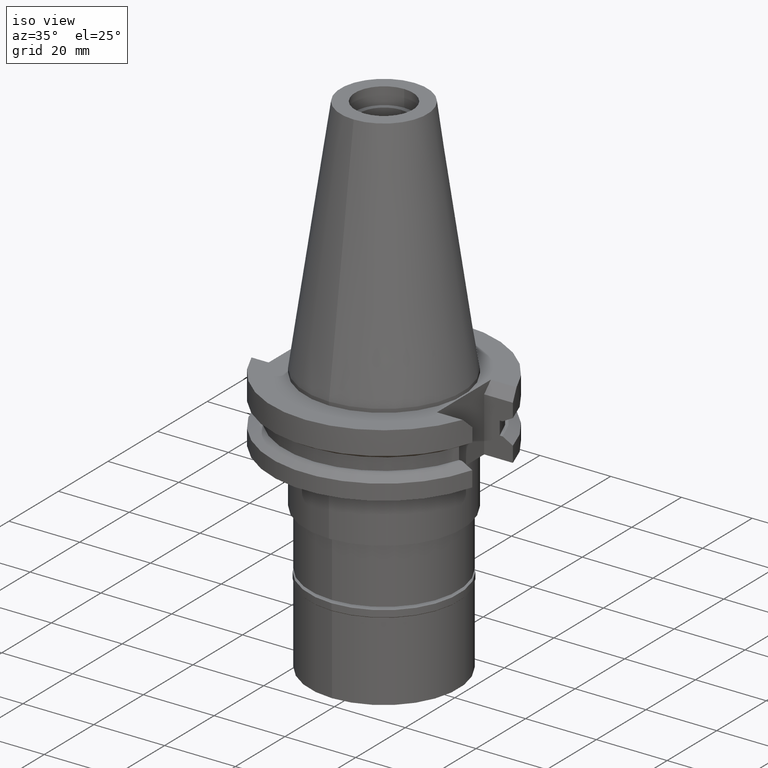
[diagram: clean part render]
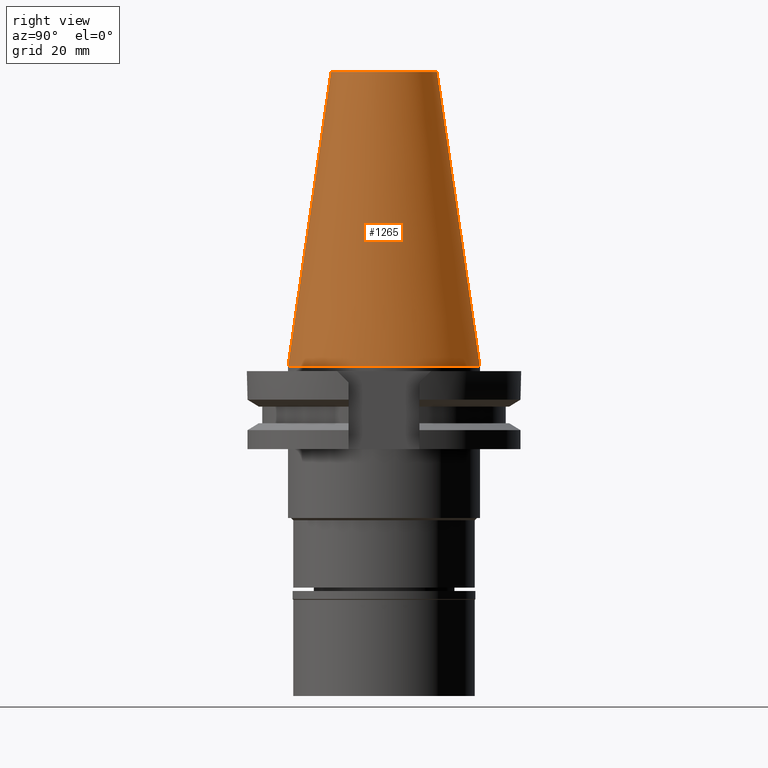
[diagram: tour spotlight — one face highlighted and labeled with its STEP entity id]
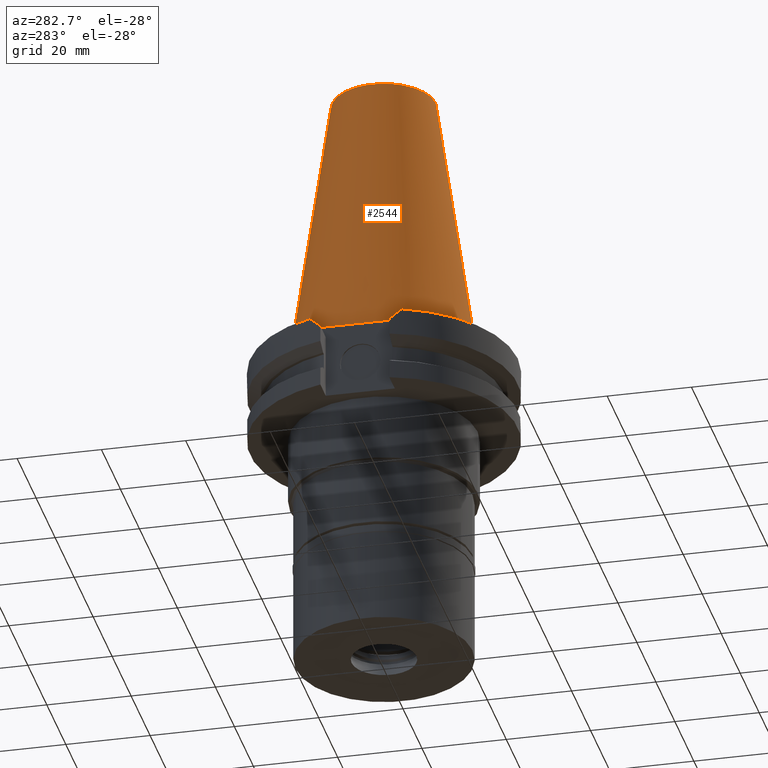
[diagram: tour spotlight — one face highlighted and labeled with its STEP entity id]
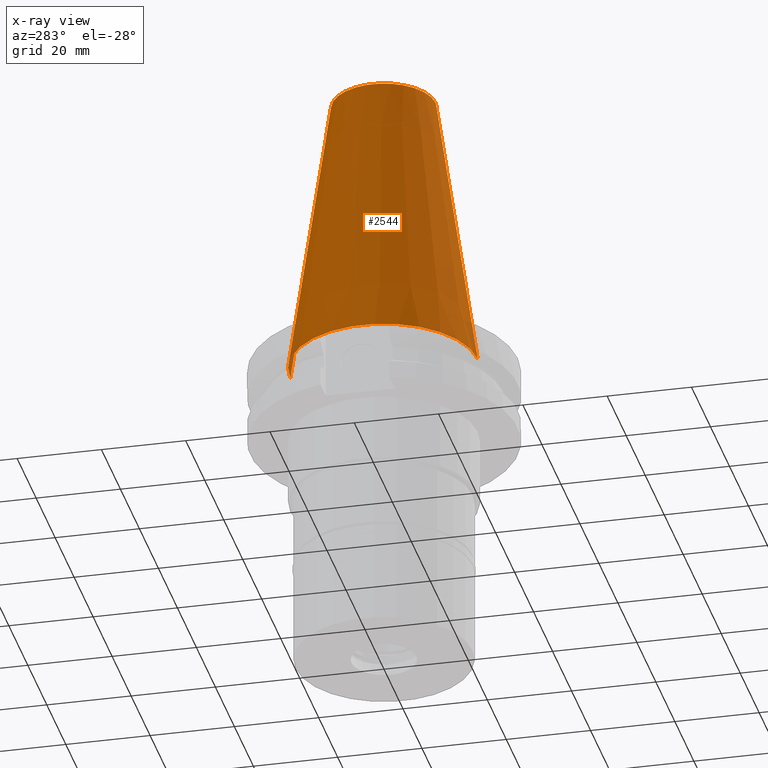
[diagram: x-ray of the same camera — body ghosted, this tour face saturated]
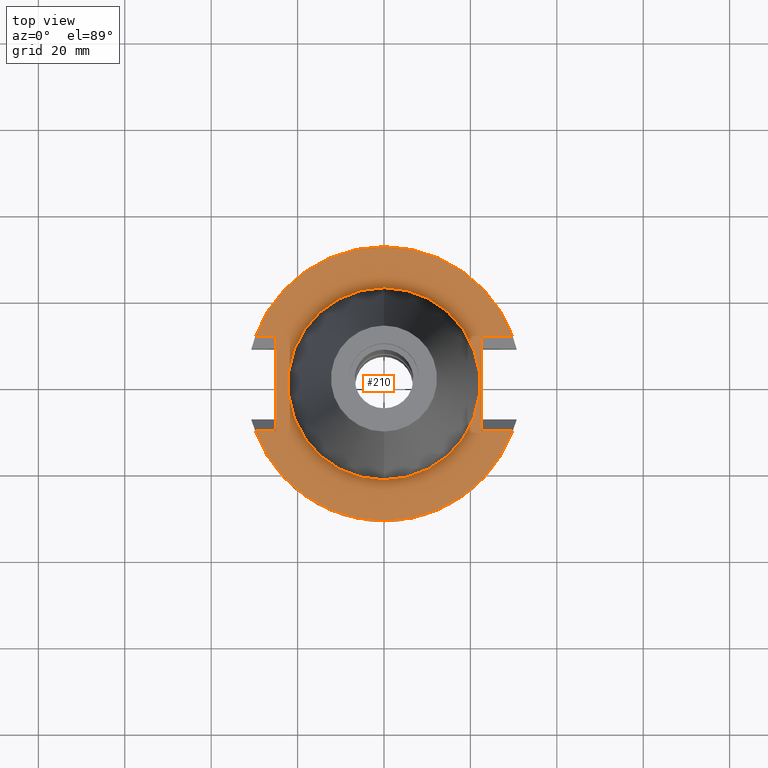
[diagram: tour spotlight — one face highlighted and labeled with its STEP entity id]
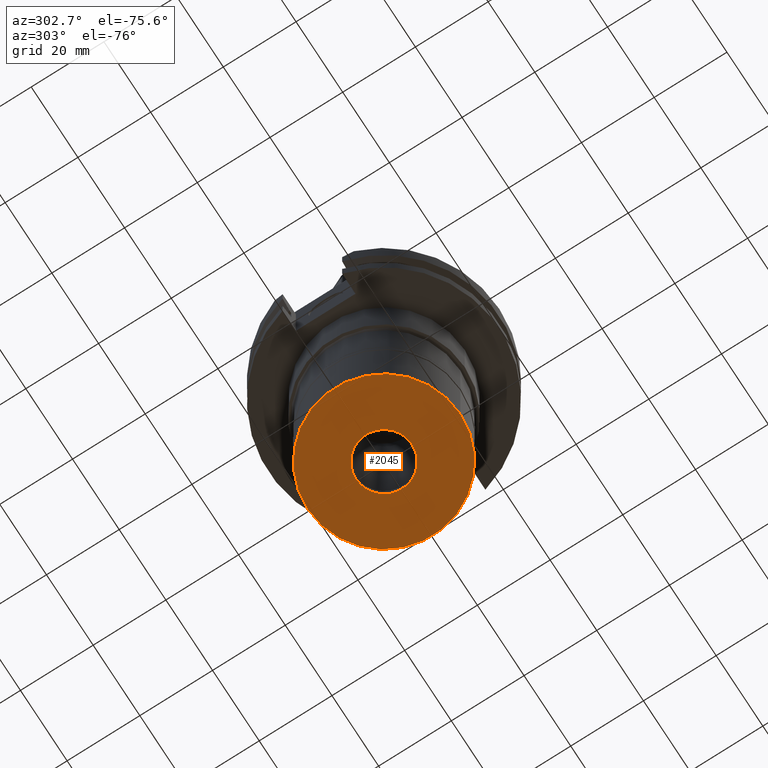
[diagram: tour spotlight — one face highlighted and labeled with its STEP entity id]
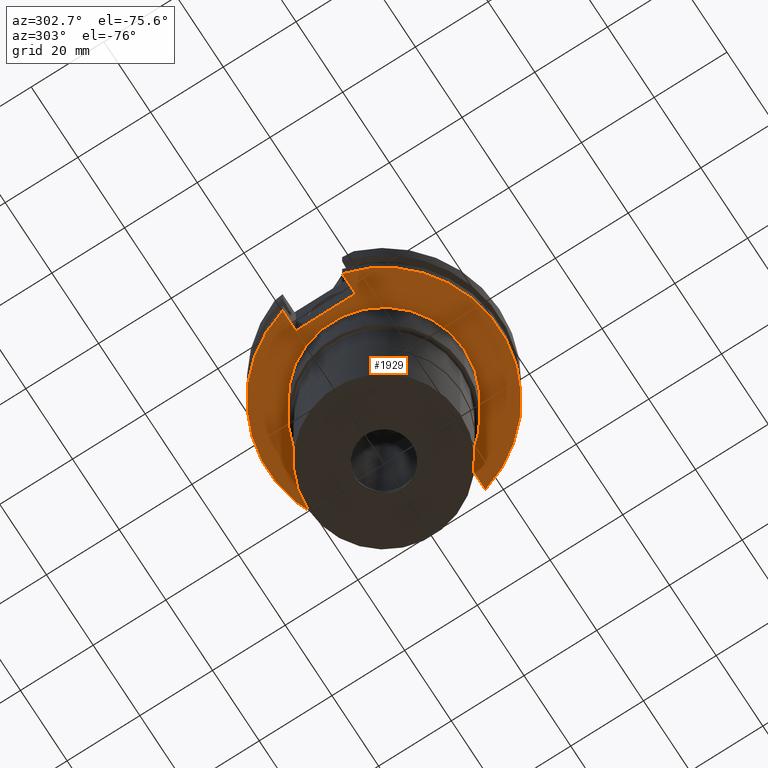
[diagram: tour spotlight — one face highlighted and labeled with its STEP entity id]
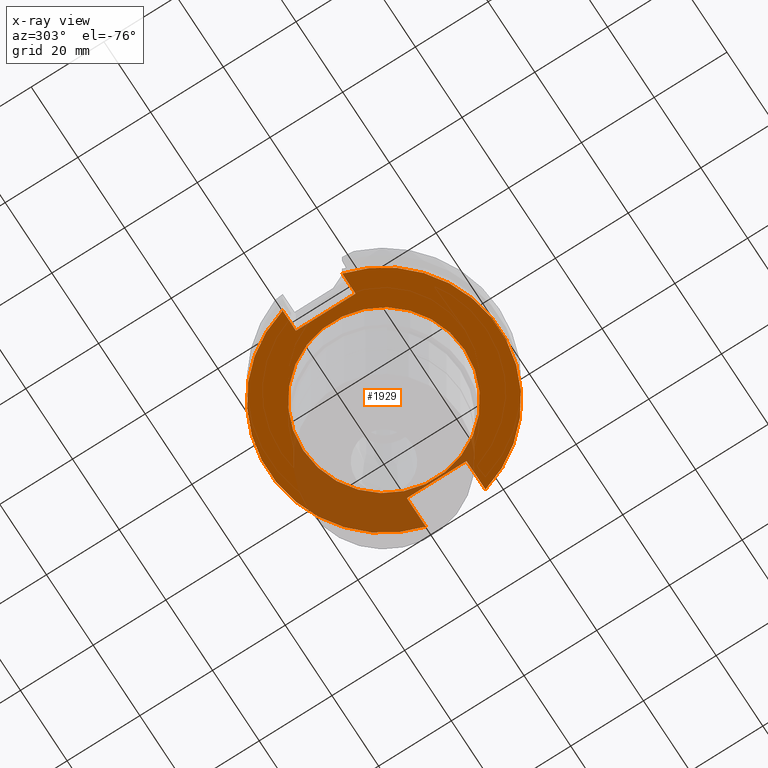
[diagram: x-ray of the same camera — body ghosted, this tour face saturated]
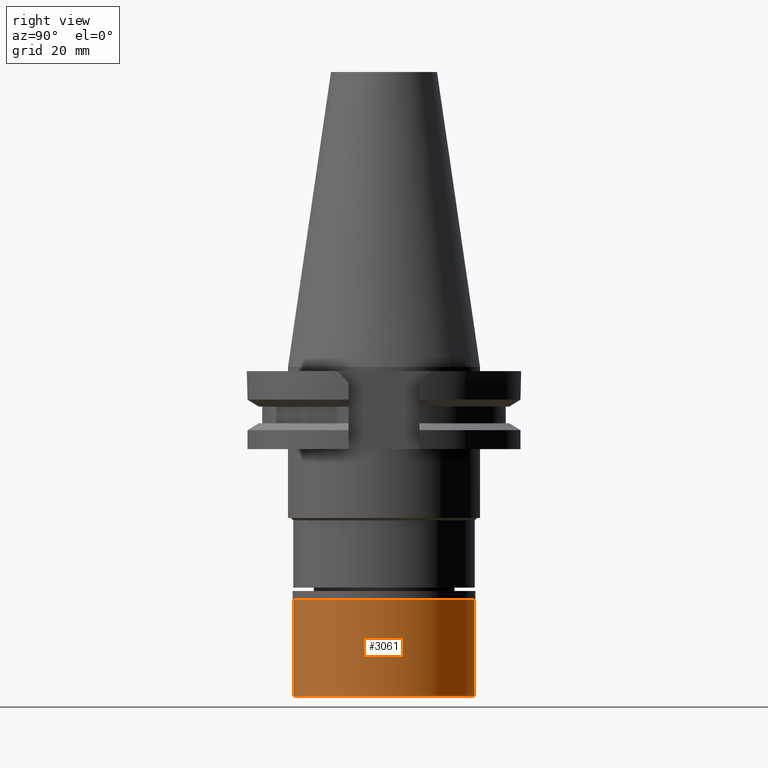
[diagram: tour spotlight — one face highlighted and labeled with its STEP entity id]
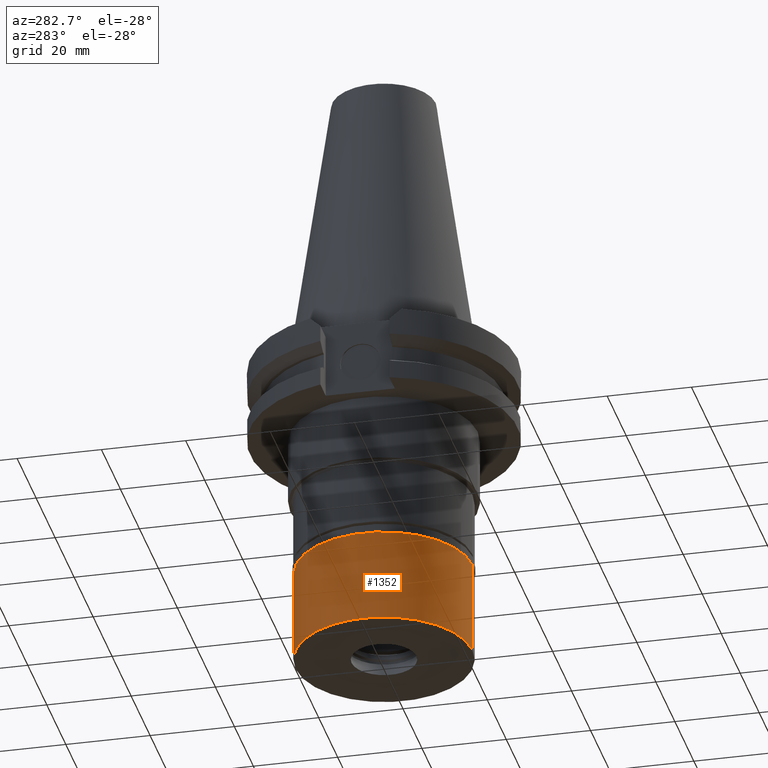
[diagram: tour spotlight — one face highlighted and labeled with its STEP entity id]
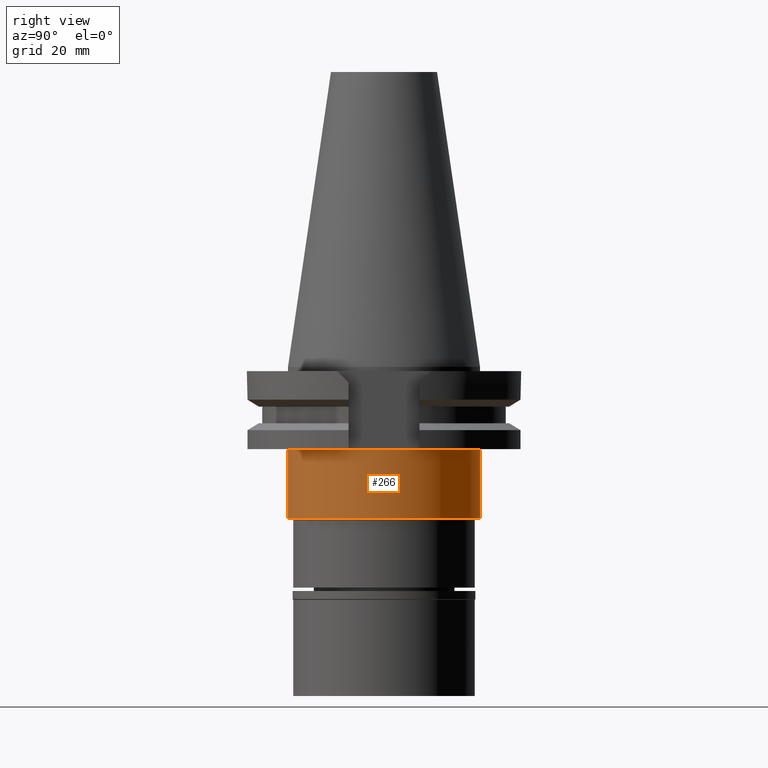
[diagram: tour spotlight — one face highlighted and labeled with its STEP entity id]
A machine part: a face-by-face anatomy tour. The part has 90 B-rep faces; the first image is the clean iso view, then the 8 largest visible faces are spotlighted one at a time (largest first), each with its STEP entity span.

Face 1 — right view, entity #1265. In plain terms, the highlighted conical surface has half-angle 8.297 deg.
Definition (entity closure, byte-faithful):
#7 = AXIS2_PLACEMENT_3D ( 'NONE', #766, #2810, #2798 ) ;
#35 = ORIENTED_EDGE ( 'NONE', *, *, #2272, .T. ) ;
#77 = DIRECTION ( 'NONE',  ( 0.0000000000000000000, 1.000000000000000000, 0.0000000000000000000 ) ) ;
#167 = CARTESIAN_POINT ( 'NONE',  ( 0.0000000000000000000, -12.27186888070000137, 68.25000000000000000 ) ) ;
#201 = LINE ( 'NONE', #388, #2561 ) ;
#388 = CARTESIAN_POINT ( 'NONE',  ( 0.0000000000000000000, 12.27186888070000137, 68.25000000000000000 ) ) ;
#476 = DIRECTION ( 'NONE',  ( 0.0000000000000000000, 0.0000000000000000000, -1.000000000000000000 ) ) ;
#528 = DIRECTION ( 'NONE',  ( 0.0000000000000000000, 1.000000000000000000, 0.0000000000000000000 ) ) ;
#529 = AXIS2_PLACEMENT_3D ( 'NONE', #1730, #476, #77 ) ;
#551 = CIRCLE ( 'NONE', #2945, 22.22500000000000142 ) ;
#636 = LINE ( 'NONE', #167, #1277 ) ;
#728 = EDGE_CURVE ( 'NONE', #1497, #2953, #2339, .T. ) ;
#766 = CARTESIAN_POINT ( 'NONE',  ( 0.0000000000000000000, 0.0000000000000000000, 34.12500000000000000 ) ) ;
#968 = CARTESIAN_POINT ( 'NONE',  ( 0.0000000000000000000, 22.22500000000000142, -1.278976924367999843E-13 ) ) ;
#1009 = CONICAL_SURFACE ( 'NONE', #7, 17.24843444035000317, 0.1448125860318199565 ) ;
#1096 = EDGE_CURVE ( 'NONE', #1497, #3028, #201, .T. ) ;
#1265 = ADVANCED_FACE ( 'NONE', ( #1709 ), #1009, .T. ) ;
#1277 = VECTOR ( 'NONE', #2129, 1000.000000000000114 ) ;
#1425 = ORIENTED_EDGE ( 'NONE', *, *, #728, .T. ) ;
#1497 = VERTEX_POINT ( 'NONE', #2899 ) ;
#1709 = FACE_OUTER_BOUND ( 'NONE', #3013, .T. ) ;
#1730 = CARTESIAN_POINT ( 'NONE',  ( 0.0000000000000000000, 0.0000000000000000000, 68.25000000000000000 ) ) ;
#1780 = DIRECTION ( 'NONE',  ( 0.0000000000000000000, 0.0000000000000000000, -1.000000000000000000 ) ) ;
#1935 = VERTEX_POINT ( 'NONE', #2653 ) ;
#2032 = CARTESIAN_POINT ( 'NONE',  ( 0.0000000000000000000, 0.0000000000000000000, -2.842170943040000381E-13 ) ) ;
#2129 = DIRECTION ( 'NONE',  ( 0.0000000000000000000, -0.1443069799456937474, -0.9895329683941577192 ) ) ;
#2272 = EDGE_CURVE ( 'NONE', #2953, #1935, #636, .T. ) ;
#2339 = CIRCLE ( 'NONE', #529, 12.27186888070000137 ) ;
#2493 = EDGE_CURVE ( 'NONE', #3028, #1935, #551, .T. ) ;
#2561 = VECTOR ( 'NONE', #2988, 1000.000000000000114 ) ;
#2653 = CARTESIAN_POINT ( 'NONE',  ( 0.0000000000000000000, -22.22500000000000142, -1.278976924367999843E-13 ) ) ;
#2790 = CARTESIAN_POINT ( 'NONE',  ( 0.0000000000000000000, -12.27186888070000137, 68.25000000000000000 ) ) ;
#2794 = ORIENTED_EDGE ( 'NONE', *, *, #2493, .F. ) ;
#2798 = DIRECTION ( 'NONE',  ( 0.0000000000000000000, -1.000000000000000000, 0.0000000000000000000 ) ) ;
#2810 = DIRECTION ( 'NONE',  ( 0.0000000000000000000, 0.0000000000000000000, -1.000000000000000000 ) ) ;
#2899 = CARTESIAN_POINT ( 'NONE',  ( 0.0000000000000000000, 12.27186888070000137, 68.25000000000000000 ) ) ;
#2945 = AXIS2_PLACEMENT_3D ( 'NONE', #2032, #1780, #528 ) ;
#2953 = VERTEX_POINT ( 'NONE', #2790 ) ;
#2988 = DIRECTION ( 'NONE',  ( 0.0000000000000000000, 0.1443069799456937474, -0.9895329683941577192 ) ) ;
#3013 = EDGE_LOOP ( 'NONE', ( #1425, #35, #2794, #3072 ) ) ;
#3028 = VERTEX_POINT ( 'NONE', #968 ) ;
#3072 = ORIENTED_EDGE ( 'NONE', *, *, #1096, .F. ) ;

Face 2 — auxiliary view, entity #2544. An x-ray twin of the same camera follows (body ghosted, this face saturated) — the face is partly hidden behind the body. In plain terms, the highlighted conical surface has half-angle 8.297 deg.
Definition (entity closure, byte-faithful):
#96 = DIRECTION ( 'NONE',  ( 0.0000000000000000000, -1.000000000000000000, 0.0000000000000000000 ) ) ;
#167 = CARTESIAN_POINT ( 'NONE',  ( 0.0000000000000000000, -12.27186888070000137, 68.25000000000000000 ) ) ;
#201 = LINE ( 'NONE', #388, #2561 ) ;
#206 = DIRECTION ( 'NONE',  ( 0.0000000000000000000, 0.0000000000000000000, -1.000000000000000000 ) ) ;
#283 = EDGE_CURVE ( 'NONE', #1935, #3028, #2548, .T. ) ;
#306 = DIRECTION ( 'NONE',  ( 0.0000000000000000000, 0.0000000000000000000, -1.000000000000000000 ) ) ;
#388 = CARTESIAN_POINT ( 'NONE',  ( 0.0000000000000000000, 12.27186888070000137, 68.25000000000000000 ) ) ;
#430 = ORIENTED_EDGE ( 'NONE', *, *, #1096, .T. ) ;
#442 = CARTESIAN_POINT ( 'NONE',  ( 0.0000000000000000000, 0.0000000000000000000, 68.25000000000000000 ) ) ;
#550 = DIRECTION ( 'NONE',  ( 0.0000000000000000000, 0.0000000000000000000, -1.000000000000000000 ) ) ;
#636 = LINE ( 'NONE', #167, #1277 ) ;
#695 = CIRCLE ( 'NONE', #3196, 12.27186888070000137 ) ;
#738 = AXIS2_PLACEMENT_3D ( 'NONE', #783, #306, #1089 ) ;
#742 = DIRECTION ( 'NONE',  ( 0.0000000000000000000, -1.000000000000000000, 0.0000000000000000000 ) ) ;
#760 = CARTESIAN_POINT ( 'NONE',  ( 0.0000000000000000000, 0.0000000000000000000, 34.12500000000000000 ) ) ;
#783 = CARTESIAN_POINT ( 'NONE',  ( 0.0000000000000000000, 0.0000000000000000000, -2.842170943040000381E-13 ) ) ;
#968 = CARTESIAN_POINT ( 'NONE',  ( 0.0000000000000000000, 22.22500000000000142, -1.278976924367999843E-13 ) ) ;
#1089 = DIRECTION ( 'NONE',  ( 0.0000000000000000000, -1.000000000000000000, 0.0000000000000000000 ) ) ;
#1096 = EDGE_CURVE ( 'NONE', #1497, #3028, #201, .T. ) ;
#1125 = EDGE_LOOP ( 'NONE', ( #3274, #3239, #1167, #430 ) ) ;
#1167 = ORIENTED_EDGE ( 'NONE', *, *, #2029, .T. ) ;
#1223 = CONICAL_SURFACE ( 'NONE', #3155, 17.24843444035000317, 0.1448125860318199565 ) ;
#1277 = VECTOR ( 'NONE', #2129, 1000.000000000000114 ) ;
#1497 = VERTEX_POINT ( 'NONE', #2899 ) ;
#1935 = VERTEX_POINT ( 'NONE', #2653 ) ;
#2029 = EDGE_CURVE ( 'NONE', #2953, #1497, #695, .T. ) ;
#2129 = DIRECTION ( 'NONE',  ( 0.0000000000000000000, -0.1443069799456937474, -0.9895329683941577192 ) ) ;
#2272 = EDGE_CURVE ( 'NONE', #2953, #1935, #636, .T. ) ;
#2544 = ADVANCED_FACE ( 'NONE', ( #3076 ), #1223, .T. ) ;
#2548 = CIRCLE ( 'NONE', #738, 22.22500000000000142 ) ;
#2561 = VECTOR ( 'NONE', #2988, 1000.000000000000114 ) ;
#2653 = CARTESIAN_POINT ( 'NONE',  ( 0.0000000000000000000, -22.22500000000000142, -1.278976924367999843E-13 ) ) ;
#2790 = CARTESIAN_POINT ( 'NONE',  ( 0.0000000000000000000, -12.27186888070000137, 68.25000000000000000 ) ) ;
#2899 = CARTESIAN_POINT ( 'NONE',  ( 0.0000000000000000000, 12.27186888070000137, 68.25000000000000000 ) ) ;
#2953 = VERTEX_POINT ( 'NONE', #2790 ) ;
#2988 = DIRECTION ( 'NONE',  ( 0.0000000000000000000, 0.1443069799456937474, -0.9895329683941577192 ) ) ;
#3028 = VERTEX_POINT ( 'NONE', #968 ) ;
#3076 = FACE_OUTER_BOUND ( 'NONE', #1125, .T. ) ;
#3155 = AXIS2_PLACEMENT_3D ( 'NONE', #760, #550, #742 ) ;
#3196 = AXIS2_PLACEMENT_3D ( 'NONE', #442, #206, #96 ) ;
#3239 = ORIENTED_EDGE ( 'NONE', *, *, #2272, .F. ) ;
#3274 = ORIENTED_EDGE ( 'NONE', *, *, #283, .F. ) ;

Face 3 — top view, entity #210. In plain terms, the highlighted planar face has unit normal (0, 0, -1).
Definition (entity closure, byte-faithful):
#59 = CARTESIAN_POINT ( 'NONE',  ( -24.98000000000000043, 10.89000000000000057, -1.000000000000000000 ) ) ;
#100 = VECTOR ( 'NONE', #569, 1000.000000000000000 ) ;
#114 = CARTESIAN_POINT ( 'NONE',  ( 0.0000000000000000000, 22.22500000000000142, -0.9999999999999000799 ) ) ;
#118 = ORIENTED_EDGE ( 'NONE', *, *, #2936, .T. ) ;
#210 = ADVANCED_FACE ( 'NONE', ( #2149, #1126 ), #372, .F. ) ;
#273 = LINE ( 'NONE', #1022, #2391 ) ;
#298 = CARTESIAN_POINT ( 'NONE',  ( -24.98000000000000043, -10.89000000000000057, -1.000000000000000000 ) ) ;
#334 = EDGE_CURVE ( 'NONE', #1374, #2935, #1839, .T. ) ;
#372 = PLANE ( 'NONE',  #2751 ) ;
#390 = EDGE_CURVE ( 'NONE', #2603, #2955, #273, .T. ) ;
#450 = ORIENTED_EDGE ( 'NONE', *, *, #2174, .F. ) ;
#491 = ORIENTED_EDGE ( 'NONE', *, *, #2492, .F. ) ;
#496 = ORIENTED_EDGE ( 'NONE', *, *, #2704, .T. ) ;
#549 = LINE ( 'NONE', #1260, #1872 ) ;
#569 = DIRECTION ( 'NONE',  ( 0.0000000000000000000, -1.000000000000000000, 0.0000000000000000000 ) ) ;
#586 = CARTESIAN_POINT ( 'NONE',  ( 22.57000000000000028, 10.89000000000000057, -1.000000000000000000 ) ) ;
#598 = DIRECTION ( 'NONE',  ( 0.0000000000000000000, 0.0000000000000000000, 1.000000000000000000 ) ) ;
#604 = VECTOR ( 'NONE', #2840, 1000.000000000000000 ) ;
#614 = CARTESIAN_POINT ( 'NONE',  ( 0.0000000000000000000, 0.0000000000000000000, -0.9999999999999000799 ) ) ;
#653 = VECTOR ( 'NONE', #2640, 1000.000000000000000 ) ;
#670 = VERTEX_POINT ( 'NONE', #2773 ) ;
#676 = EDGE_CURVE ( 'NONE', #2935, #1361, #777, .T. ) ;
#699 = AXIS2_PLACEMENT_3D ( 'NONE', #2074, #3113, #1036 ) ;
#747 = CARTESIAN_POINT ( 'NONE',  ( 22.57000000000000028, 10.89000000000000057, -1.000000000000000000 ) ) ;
#774 = DIRECTION ( 'NONE',  ( 0.0000000000000000000, -1.000000000000000000, 0.0000000000000000000 ) ) ;
#777 = LINE ( 'NONE', #2527, #896 ) ;
#793 = DIRECTION ( 'NONE',  ( 0.0000000000000000000, -1.000000000000000000, 0.0000000000000000000 ) ) ;
#896 = VECTOR ( 'NONE', #2805, 1000.000000000000000 ) ;
#986 = ORIENTED_EDGE ( 'NONE', *, *, #1982, .T. ) ;
#1004 = DIRECTION ( 'NONE',  ( 0.0000000000000000000, 0.0000000000000000000, 1.000000000000000000 ) ) ;
#1018 = CARTESIAN_POINT ( 'NONE',  ( 0.0000000000000000000, 0.0000000000000000000, -0.9999999999999000799 ) ) ;
#1022 = CARTESIAN_POINT ( 'NONE',  ( -24.98000000000000043, 10.89000000000000057, -1.000000000000000000 ) ) ;
#1036 = DIRECTION ( 'NONE',  ( 0.0000000000000000000, 1.000000000000000000, 0.0000000000000000000 ) ) ;
#1037 = VERTEX_POINT ( 'NONE', #1631 ) ;
#1097 = LINE ( 'NONE', #2609, #604 ) ;
#1126 = FACE_BOUND ( 'NONE', #1245, .T. ) ;
#1245 = EDGE_LOOP ( 'NONE', ( #1623, #491 ) ) ;
#1260 = CARTESIAN_POINT ( 'NONE',  ( -24.98000000000000043, 10.89000000000000057, -1.000000000000000000 ) ) ;
#1280 = CIRCLE ( 'NONE', #1814, 22.22500000000000142 ) ;
#1328 = AXIS2_PLACEMENT_3D ( 'NONE', #2673, #1640, #2721 ) ;
#1361 = VERTEX_POINT ( 'NONE', #2021 ) ;
#1374 = VERTEX_POINT ( 'NONE', #747 ) ;
#1375 = CARTESIAN_POINT ( 'NONE',  ( 0.0000000000000000000, 0.0000000000000000000, -1.000000000000000000 ) ) ;
#1389 = AXIS2_PLACEMENT_3D ( 'NONE', #614, #598, #2859 ) ;
#1400 = EDGE_LOOP ( 'NONE', ( #986, #450, #2758, #118, #496, #2949, #1911, #2475 ) ) ;
#1623 = ORIENTED_EDGE ( 'NONE', *, *, #2679, .F. ) ;
#1631 = CARTESIAN_POINT ( 'NONE',  ( -29.82399034335000110, -10.89000000000000057, -1.000000000001000089 ) ) ;
#1640 = DIRECTION ( 'NONE',  ( 0.0000000000000000000, 0.0000000000000000000, -1.000000000000000000 ) ) ;
#1695 = LINE ( 'NONE', #2712, #653 ) ;
#1781 = EDGE_CURVE ( 'NONE', #1361, #1037, #2937, .T. ) ;
#1806 = DIRECTION ( 'NONE',  ( 0.0000000000000000000, -1.000000000000000000, 0.0000000000000000000 ) ) ;
#1814 = AXIS2_PLACEMENT_3D ( 'NONE', #1018, #1004, #793 ) ;
#1839 = LINE ( 'NONE', #586, #100 ) ;
#1867 = CIRCLE ( 'NONE', #699, 31.75000000000000000 ) ;
#1872 = VECTOR ( 'NONE', #774, 1000.000000000000000 ) ;
#1879 = VERTEX_POINT ( 'NONE', #114 ) ;
#1911 = ORIENTED_EDGE ( 'NONE', *, *, #676, .F. ) ;
#1982 = EDGE_CURVE ( 'NONE', #1374, #2079, #1695, .T. ) ;
#2021 = CARTESIAN_POINT ( 'NONE',  ( 29.82399034335000110, -10.89000000000000057, -1.000000000001000089 ) ) ;
#2050 = DIRECTION ( 'NONE',  ( -1.000000000000000000, -7.921012432186000838E-14, 0.0000000000000000000 ) ) ;
#2074 = CARTESIAN_POINT ( 'NONE',  ( 0.0000000000000000000, 0.0000000000000000000, -0.9999999999999000799 ) ) ;
#2079 = VERTEX_POINT ( 'NONE', #2092 ) ;
#2092 = CARTESIAN_POINT ( 'NONE',  ( 29.82399034335000110, 10.89000000000000057, -1.000000000001000089 ) ) ;
#2149 = FACE_OUTER_BOUND ( 'NONE', #1400, .T. ) ;
#2174 = EDGE_CURVE ( 'NONE', #2955, #2079, #1867, .T. ) ;
#2311 = CARTESIAN_POINT ( 'NONE',  ( 22.57000000000000028, -10.89000000000000057, -1.000000000000000000 ) ) ;
#2391 = VECTOR ( 'NONE', #2050, 1000.000000000000000 ) ;
#2405 = DIRECTION ( 'NONE',  ( 0.0000000000000000000, 0.0000000000000000000, -1.000000000000000000 ) ) ;
#2475 = ORIENTED_EDGE ( 'NONE', *, *, #334, .F. ) ;
#2492 = EDGE_CURVE ( 'NONE', #670, #1879, #1280, .T. ) ;
#2497 = VERTEX_POINT ( 'NONE', #298 ) ;
#2527 = CARTESIAN_POINT ( 'NONE',  ( 22.57000000000000028, -10.89000000000000057, -1.000000000000000000 ) ) ;
#2562 = CARTESIAN_POINT ( 'NONE',  ( -29.82399034335000110, 10.89000000000000057, -0.9999999999999000799 ) ) ;
#2603 = VERTEX_POINT ( 'NONE', #59 ) ;
#2609 = CARTESIAN_POINT ( 'NONE',  ( -24.98000000000000043, -10.89000000000000057, -1.000000000000000000 ) ) ;
#2640 = DIRECTION ( 'NONE',  ( 1.000000000000000000, -5.264919063772000481E-14, 0.0000000000000000000 ) ) ;
#2673 = CARTESIAN_POINT ( 'NONE',  ( 0.0000000000000000000, 0.0000000000000000000, -0.9999999999999000799 ) ) ;
#2679 = EDGE_CURVE ( 'NONE', #1879, #670, #2830, .T. ) ;
#2704 = EDGE_CURVE ( 'NONE', #2497, #1037, #1097, .T. ) ;
#2712 = CARTESIAN_POINT ( 'NONE',  ( 22.57000000000000028, 10.89000000000000057, -1.000000000000000000 ) ) ;
#2721 = DIRECTION ( 'NONE',  ( 0.0000000000000000000, -1.000000000000000000, 0.0000000000000000000 ) ) ;
#2751 = AXIS2_PLACEMENT_3D ( 'NONE', #1375, #2405, #1806 ) ;
#2758 = ORIENTED_EDGE ( 'NONE', *, *, #390, .F. ) ;
#2773 = CARTESIAN_POINT ( 'NONE',  ( 0.0000000000000000000, -22.22500000000000142, -0.9999999999999000799 ) ) ;
#2805 = DIRECTION ( 'NONE',  ( 1.000000000000000000, 5.338383050707999847E-14, 0.0000000000000000000 ) ) ;
#2830 = CIRCLE ( 'NONE', #1389, 22.22500000000000142 ) ;
#2840 = DIRECTION ( 'NONE',  ( -1.000000000000000000, 7.884341078333000556E-14, 0.0000000000000000000 ) ) ;
#2859 = DIRECTION ( 'NONE',  ( 0.0000000000000000000, 1.000000000000000000, 0.0000000000000000000 ) ) ;
#2935 = VERTEX_POINT ( 'NONE', #2311 ) ;
#2936 = EDGE_CURVE ( 'NONE', #2603, #2497, #549, .T. ) ;
#2937 = CIRCLE ( 'NONE', #1328, 31.75000000000000000 ) ;
#2949 = ORIENTED_EDGE ( 'NONE', *, *, #1781, .F. ) ;
#2955 = VERTEX_POINT ( 'NONE', #2562 ) ;
#3113 = DIRECTION ( 'NONE',  ( 0.0000000000000000000, 0.0000000000000000000, -1.000000000000000000 ) ) ;

Face 4 — auxiliary view, entity #2045. In plain terms, the highlighted planar face has unit normal (0, 0, -1).
Definition (entity closure, byte-faithful):
#6 = EDGE_LOOP ( 'NONE', ( #1922, #1078 ) ) ;
#71 = CARTESIAN_POINT ( 'NONE',  ( 0.0000000000000000000, 7.700000000000000178, -24.29999999999999716 ) ) ;
#123 = CIRCLE ( 'NONE', #2671, 21.00000000000000000 ) ;
#380 = DIRECTION ( 'NONE',  ( 0.0000000000000000000, -1.000000000000000000, 0.0000000000000000000 ) ) ;
#434 = AXIS2_PLACEMENT_3D ( 'NONE', #2155, #1939, #380 ) ;
#472 = PLANE ( 'NONE',  #2403 ) ;
#719 = FACE_OUTER_BOUND ( 'NONE', #2688, .T. ) ;
#838 = DIRECTION ( 'NONE',  ( 0.0000000000000000000, -1.000000000000000000, 0.0000000000000000000 ) ) ;
#874 = DIRECTION ( 'NONE',  ( 0.0000000000000000000, 1.000000000000000000, 0.0000000000000000000 ) ) ;
#904 = CIRCLE ( 'NONE', #434, 21.00000000000000000 ) ;
#916 = CARTESIAN_POINT ( 'NONE',  ( 0.0000000000000000000, 0.0000000000000000000, -24.29999999999999716 ) ) ;
#967 = AXIS2_PLACEMENT_3D ( 'NONE', #2910, #2639, #838 ) ;
#1019 = VERTEX_POINT ( 'NONE', #71 ) ;
#1078 = ORIENTED_EDGE ( 'NONE', *, *, #2643, .F. ) ;
#1099 = CARTESIAN_POINT ( 'NONE',  ( 0.0000000000000000000, 0.0000000000000000000, -24.29999999999999716 ) ) ;
#1168 = VERTEX_POINT ( 'NONE', #2677 ) ;
#1176 = VERTEX_POINT ( 'NONE', #1645 ) ;
#1363 = DIRECTION ( 'NONE',  ( 0.0000000000000000000, 0.0000000000000000000, -1.000000000000000000 ) ) ;
#1645 = CARTESIAN_POINT ( 'NONE',  ( 0.0000000000000000000, 21.00000000000000000, -24.29999999999999716 ) ) ;
#1679 = DIRECTION ( 'NONE',  ( 0.0000000000000000000, 1.000000000000000000, 0.0000000000000000000 ) ) ;
#1728 = FACE_BOUND ( 'NONE', #6, .T. ) ;
#1760 = CIRCLE ( 'NONE', #967, 7.700000000000000178 ) ;
#1885 = CARTESIAN_POINT ( 'NONE',  ( 0.0000000000000000000, 0.0000000000000000000, -24.29999999999999716 ) ) ;
#1922 = ORIENTED_EDGE ( 'NONE', *, *, #2642, .F. ) ;
#1923 = EDGE_CURVE ( 'NONE', #2183, #1176, #904, .T. ) ;
#1928 = DIRECTION ( 'NONE',  ( 0.0000000000000000000, 0.0000000000000000000, 1.000000000000000000 ) ) ;
#1939 = DIRECTION ( 'NONE',  ( 0.0000000000000000000, 0.0000000000000000000, 1.000000000000000000 ) ) ;
#2045 = ADVANCED_FACE ( 'NONE', ( #719, #1728 ), #472, .T. ) ;
#2123 = DIRECTION ( 'NONE',  ( 0.0000000000000000000, 0.0000000000000000000, -1.000000000000000000 ) ) ;
#2155 = CARTESIAN_POINT ( 'NONE',  ( 0.0000000000000000000, 0.0000000000000000000, -24.29999999999999716 ) ) ;
#2164 = ORIENTED_EDGE ( 'NONE', *, *, #2892, .F. ) ;
#2183 = VERTEX_POINT ( 'NONE', #2865 ) ;
#2403 = AXIS2_PLACEMENT_3D ( 'NONE', #1099, #2123, #3144 ) ;
#2569 = CIRCLE ( 'NONE', #3200, 7.700000000000000178 ) ;
#2639 = DIRECTION ( 'NONE',  ( 0.0000000000000000000, 0.0000000000000000000, -1.000000000000000000 ) ) ;
#2642 = EDGE_CURVE ( 'NONE', #1019, #1168, #2569, .T. ) ;
#2643 = EDGE_CURVE ( 'NONE', #1168, #1019, #1760, .T. ) ;
#2671 = AXIS2_PLACEMENT_3D ( 'NONE', #916, #1928, #1679 ) ;
#2677 = CARTESIAN_POINT ( 'NONE',  ( 0.0000000000000000000, -7.700000000000000178, -24.29999999999999716 ) ) ;
#2688 = EDGE_LOOP ( 'NONE', ( #2164, #2998 ) ) ;
#2865 = CARTESIAN_POINT ( 'NONE',  ( 0.0000000000000000000, -21.00000000000000000, -24.29999999999999716 ) ) ;
#2892 = EDGE_CURVE ( 'NONE', #1176, #2183, #123, .T. ) ;
#2910 = CARTESIAN_POINT ( 'NONE',  ( 0.0000000000000000000, 0.0000000000000000000, -24.29999999999999716 ) ) ;
#2998 = ORIENTED_EDGE ( 'NONE', *, *, #1923, .F. ) ;
#3144 = DIRECTION ( 'NONE',  ( 0.0000000000000000000, -1.000000000000000000, 0.0000000000000000000 ) ) ;
#3200 = AXIS2_PLACEMENT_3D ( 'NONE', #1885, #1363, #874 ) ;

Face 5 — auxiliary view, entity #1929. An x-ray twin of the same camera follows (body ghosted, this face saturated) — the face is partly hidden behind the body. In plain terms, the highlighted planar face has unit normal (0, 0, -1).
Definition (entity closure, byte-faithful):
#41 = CARTESIAN_POINT ( 'NONE',  ( 22.57000000000000028, -8.189999999999999503, -19.05000000000000071 ) ) ;
#97 = DIRECTION ( 'NONE',  ( 0.0000000000000000000, 0.0000000000000000000, 1.000000000000000000 ) ) ;
#112 = PLANE ( 'NONE',  #2714 ) ;
#147 = CARTESIAN_POINT ( 'NONE',  ( 0.0000000000000000000, 0.0000000000000000000, -19.05000000000000071 ) ) ;
#178 = VECTOR ( 'NONE', #1226, 1000.000000000000000 ) ;
#194 = CARTESIAN_POINT ( 'NONE',  ( 0.0000000000000000000, 0.0000000000000000000, -19.05000000000000071 ) ) ;
#219 = VERTEX_POINT ( 'NONE', #2570 ) ;
#288 = CARTESIAN_POINT ( 'NONE',  ( 0.0000000000000000000, 0.0000000000000000000, -19.05000000000000071 ) ) ;
#333 = DIRECTION ( 'NONE',  ( 0.0000000000000000000, -1.000000000000000000, 0.0000000000000000000 ) ) ;
#402 = CARTESIAN_POINT ( 'NONE',  ( 22.57000000000000028, 8.189999999999999503, -19.05000000000000071 ) ) ;
#420 = LINE ( 'NONE', #402, #2985 ) ;
#427 = EDGE_CURVE ( 'NONE', #1702, #1345, #640, .T. ) ;
#483 = ORIENTED_EDGE ( 'NONE', *, *, #427, .F. ) ;
#516 = CARTESIAN_POINT ( 'NONE',  ( -24.98000000000000043, -8.189999999999999503, -19.05000000000000071 ) ) ;
#610 = AXIS2_PLACEMENT_3D ( 'NONE', #194, #3236, #2153 ) ;
#640 = CIRCLE ( 'NONE', #3134, 31.75000000000000000 ) ;
#759 = EDGE_CURVE ( 'NONE', #2656, #3240, #2753, .T. ) ;
#829 = EDGE_CURVE ( 'NONE', #2292, #1345, #2787, .T. ) ;
#858 = CIRCLE ( 'NONE', #2715, 22.22500000000000142 ) ;
#892 = DIRECTION ( 'NONE',  ( 0.0000000000000000000, -1.000000000000000000, 0.0000000000000000000 ) ) ;
#918 = ORIENTED_EDGE ( 'NONE', *, *, #1148, .F. ) ;
#927 = ORIENTED_EDGE ( 'NONE', *, *, #3191, .T. ) ;
#928 = CARTESIAN_POINT ( 'NONE',  ( 22.57000000000000028, 8.189999999999999503, -19.05000000000000071 ) ) ;
#965 = FACE_OUTER_BOUND ( 'NONE', #1549, .T. ) ;
#998 = ORIENTED_EDGE ( 'NONE', *, *, #759, .F. ) ;
#1041 = DIRECTION ( 'NONE',  ( 1.000000000000000000, 0.0000000000000000000, 0.0000000000000000000 ) ) ;
#1057 = VERTEX_POINT ( 'NONE', #2369 ) ;
#1067 = CARTESIAN_POINT ( 'NONE',  ( -30.67550162588999640, -8.189999999999999503, -19.05000000000000071 ) ) ;
#1148 = EDGE_CURVE ( 'NONE', #3253, #1702, #420, .T. ) ;
#1226 = DIRECTION ( 'NONE',  ( -1.000000000000000000, 0.0000000000000000000, 0.0000000000000000000 ) ) ;
#1345 = VERTEX_POINT ( 'NONE', #2550 ) ;
#1376 = ORIENTED_EDGE ( 'NONE', *, *, #2325, .T. ) ;
#1460 = FACE_BOUND ( 'NONE', #2664, .T. ) ;
#1549 = EDGE_LOOP ( 'NONE', ( #927, #998, #2387, #2402, #2449, #483, #918, #1376 ) ) ;
#1635 = DIRECTION ( 'NONE',  ( 0.0000000000000000000, -1.000000000000000000, 0.0000000000000000000 ) ) ;
#1643 = LINE ( 'NONE', #2161, #2717 ) ;
#1656 = CARTESIAN_POINT ( 'NONE',  ( -24.98000000000000043, 8.189999999999999503, -19.05000000000000071 ) ) ;
#1684 = AXIS2_PLACEMENT_3D ( 'NONE', #3024, #2768, #2557 ) ;
#1702 = VERTEX_POINT ( 'NONE', #1890 ) ;
#1833 = CARTESIAN_POINT ( 'NONE',  ( -24.98000000000000043, 8.189999999999999503, -19.05000000000000071 ) ) ;
#1887 = CARTESIAN_POINT ( 'NONE',  ( 0.0000000000000000000, 0.0000000000000000000, -19.05000000000000071 ) ) ;
#1890 = CARTESIAN_POINT ( 'NONE',  ( 30.67550162588999640, 8.189999999999999503, -19.05000000000000071 ) ) ;
#1894 = VERTEX_POINT ( 'NONE', #2484 ) ;
#1929 = ADVANCED_FACE ( 'NONE', ( #965, #1460 ), #112, .T. ) ;
#1938 = CARTESIAN_POINT ( 'NONE',  ( 30.67550162588999640, -8.189999999999999503, -19.05000000000000071 ) ) ;
#2008 = ORIENTED_EDGE ( 'NONE', *, *, #2236, .F. ) ;
#2010 = CARTESIAN_POINT ( 'NONE',  ( -24.98000000000000043, 8.189999999999999503, -19.05000000000000071 ) ) ;
#2153 = DIRECTION ( 'NONE',  ( 0.0000000000000000000, -1.000000000000000000, 0.0000000000000000000 ) ) ;
#2161 = CARTESIAN_POINT ( 'NONE',  ( 22.57000000000000028, 8.189999999999999503, -19.05000000000000071 ) ) ;
#2236 = EDGE_CURVE ( 'NONE', #219, #1057, #858, .T. ) ;
#2274 = ORIENTED_EDGE ( 'NONE', *, *, #2744, .F. ) ;
#2292 = VERTEX_POINT ( 'NONE', #1656 ) ;
#2307 = DIRECTION ( 'NONE',  ( -1.000000000000000000, 0.0000000000000000000, 0.0000000000000000000 ) ) ;
#2325 = EDGE_CURVE ( 'NONE', #3253, #1894, #1643, .T. ) ;
#2328 = LINE ( 'NONE', #41, #2499 ) ;
#2369 = CARTESIAN_POINT ( 'NONE',  ( 0.0000000000000000000, -22.22500000000000142, -19.05000000000000071 ) ) ;
#2377 = LINE ( 'NONE', #1833, #2996 ) ;
#2387 = ORIENTED_EDGE ( 'NONE', *, *, #2514, .F. ) ;
#2402 = ORIENTED_EDGE ( 'NONE', *, *, #2727, .F. ) ;
#2449 = ORIENTED_EDGE ( 'NONE', *, *, #829, .T. ) ;
#2464 = DIRECTION ( 'NONE',  ( 0.0000000000000000000, 1.000000000000000000, 0.0000000000000000000 ) ) ;
#2484 = CARTESIAN_POINT ( 'NONE',  ( 22.57000000000000028, -8.189999999999999503, -19.05000000000000071 ) ) ;
#2499 = VECTOR ( 'NONE', #1041, 1000.000000000000000 ) ;
#2501 = VERTEX_POINT ( 'NONE', #516 ) ;
#2514 = EDGE_CURVE ( 'NONE', #2501, #2656, #2563, .T. ) ;
#2550 = CARTESIAN_POINT ( 'NONE',  ( -30.67550162588999640, 8.189999999999999503, -19.05000000000000071 ) ) ;
#2557 = DIRECTION ( 'NONE',  ( 0.0000000000000000000, -1.000000000000000000, 0.0000000000000000000 ) ) ;
#2563 = LINE ( 'NONE', #2792, #178 ) ;
#2570 = CARTESIAN_POINT ( 'NONE',  ( 0.0000000000000000000, 22.22500000000000142, -19.05000000000000071 ) ) ;
#2628 = DIRECTION ( 'NONE',  ( 0.0000000000000000000, 1.000000000000000000, 0.0000000000000000000 ) ) ;
#2656 = VERTEX_POINT ( 'NONE', #1067 ) ;
#2664 = EDGE_LOOP ( 'NONE', ( #2008, #2274 ) ) ;
#2675 = DIRECTION ( 'NONE',  ( 0.0000000000000000000, 0.0000000000000000000, -1.000000000000000000 ) ) ;
#2714 = AXIS2_PLACEMENT_3D ( 'NONE', #1887, #2911, #1635 ) ;
#2715 = AXIS2_PLACEMENT_3D ( 'NONE', #147, #2675, #2628 ) ;
#2717 = VECTOR ( 'NONE', #892, 1000.000000000000000 ) ;
#2727 = EDGE_CURVE ( 'NONE', #2292, #2501, #2377, .T. ) ;
#2744 = EDGE_CURVE ( 'NONE', #1057, #219, #2784, .T. ) ;
#2753 = CIRCLE ( 'NONE', #1684, 31.75000000000000000 ) ;
#2761 = VECTOR ( 'NONE', #2307, 1000.000000000000000 ) ;
#2768 = DIRECTION ( 'NONE',  ( 0.0000000000000000000, 0.0000000000000000000, 1.000000000000000000 ) ) ;
#2784 = CIRCLE ( 'NONE', #610, 22.22500000000000142 ) ;
#2787 = LINE ( 'NONE', #2010, #2761 ) ;
#2792 = CARTESIAN_POINT ( 'NONE',  ( -24.98000000000000043, -8.189999999999999503, -19.05000000000000071 ) ) ;
#2911 = DIRECTION ( 'NONE',  ( 0.0000000000000000000, 0.0000000000000000000, -1.000000000000000000 ) ) ;
#2934 = DIRECTION ( 'NONE',  ( 1.000000000000000000, 0.0000000000000000000, 0.0000000000000000000 ) ) ;
#2985 = VECTOR ( 'NONE', #2934, 1000.000000000000000 ) ;
#2996 = VECTOR ( 'NONE', #333, 1000.000000000000000 ) ;
#3024 = CARTESIAN_POINT ( 'NONE',  ( 0.0000000000000000000, 0.0000000000000000000, -19.05000000000000071 ) ) ;
#3134 = AXIS2_PLACEMENT_3D ( 'NONE', #288, #97, #2464 ) ;
#3191 = EDGE_CURVE ( 'NONE', #1894, #3240, #2328, .T. ) ;
#3236 = DIRECTION ( 'NONE',  ( 0.0000000000000000000, 0.0000000000000000000, -1.000000000000000000 ) ) ;
#3240 = VERTEX_POINT ( 'NONE', #1938 ) ;
#3253 = VERTEX_POINT ( 'NONE', #928 ) ;

Face 6 — right view, entity #3061. In plain terms, the highlighted cylindrical surface (partial cylindrical patch) has radius 21 mm, axis along (0, 0, -1).
Definition (entity closure, byte-faithful):
#55 = VERTEX_POINT ( 'NONE', #1865 ) ;
#249 = DIRECTION ( 'NONE',  ( 0.0000000000000000000, 0.0000000000000000000, -1.000000000000000000 ) ) ;
#377 = EDGE_CURVE ( 'NONE', #55, #1176, #2884, .T. ) ;
#380 = DIRECTION ( 'NONE',  ( 0.0000000000000000000, -1.000000000000000000, 0.0000000000000000000 ) ) ;
#433 = AXIS2_PLACEMENT_3D ( 'NONE', #2470, #634, #3174 ) ;
#434 = AXIS2_PLACEMENT_3D ( 'NONE', #2155, #1939, #380 ) ;
#526 = CYLINDRICAL_SURFACE ( 'NONE', #1745, 21.00000000000000000 ) ;
#612 = DIRECTION ( 'NONE',  ( 0.0000000000000000000, 0.0000000000000000000, -1.000000000000000000 ) ) ;
#634 = DIRECTION ( 'NONE',  ( 0.0000000000000000000, 0.0000000000000000000, -1.000000000000000000 ) ) ;
#756 = FACE_OUTER_BOUND ( 'NONE', #2413, .T. ) ;
#904 = CIRCLE ( 'NONE', #434, 21.00000000000000000 ) ;
#953 = VERTEX_POINT ( 'NONE', #3116 ) ;
#1028 = CARTESIAN_POINT ( 'NONE',  ( 0.0000000000000000000, -21.00000000000000000, -2.000000000000000000 ) ) ;
#1054 = CARTESIAN_POINT ( 'NONE',  ( 0.0000000000000000000, 21.00000000000000000, -2.000000000000000000 ) ) ;
#1176 = VERTEX_POINT ( 'NONE', #1645 ) ;
#1231 = ORIENTED_EDGE ( 'NONE', *, *, #1923, .T. ) ;
#1477 = VECTOR ( 'NONE', #1543, 1000.000000000000000 ) ;
#1534 = LINE ( 'NONE', #1028, #2893 ) ;
#1543 = DIRECTION ( 'NONE',  ( 0.0000000000000000000, 0.0000000000000000000, -1.000000000000000000 ) ) ;
#1645 = CARTESIAN_POINT ( 'NONE',  ( 0.0000000000000000000, 21.00000000000000000, -24.29999999999999716 ) ) ;
#1732 = EDGE_CURVE ( 'NONE', #55, #953, #1860, .T. ) ;
#1745 = AXIS2_PLACEMENT_3D ( 'NONE', #2908, #612, #1829 ) ;
#1829 = DIRECTION ( 'NONE',  ( 0.0000000000000000000, -1.000000000000000000, 0.0000000000000000000 ) ) ;
#1860 = CIRCLE ( 'NONE', #433, 21.00000000000000000 ) ;
#1865 = CARTESIAN_POINT ( 'NONE',  ( 0.0000000000000000000, 21.00000000000000000, -2.000000000000000000 ) ) ;
#1923 = EDGE_CURVE ( 'NONE', #2183, #1176, #904, .T. ) ;
#1939 = DIRECTION ( 'NONE',  ( 0.0000000000000000000, 0.0000000000000000000, 1.000000000000000000 ) ) ;
#2155 = CARTESIAN_POINT ( 'NONE',  ( 0.0000000000000000000, 0.0000000000000000000, -24.29999999999999716 ) ) ;
#2183 = VERTEX_POINT ( 'NONE', #2865 ) ;
#2227 = ORIENTED_EDGE ( 'NONE', *, *, #377, .F. ) ;
#2269 = ORIENTED_EDGE ( 'NONE', *, *, #1732, .T. ) ;
#2413 = EDGE_LOOP ( 'NONE', ( #2269, #2793, #1231, #2227 ) ) ;
#2470 = CARTESIAN_POINT ( 'NONE',  ( 0.0000000000000000000, 0.0000000000000000000, -2.000000000000000000 ) ) ;
#2793 = ORIENTED_EDGE ( 'NONE', *, *, #2971, .T. ) ;
#2865 = CARTESIAN_POINT ( 'NONE',  ( 0.0000000000000000000, -21.00000000000000000, -24.29999999999999716 ) ) ;
#2884 = LINE ( 'NONE', #1054, #1477 ) ;
#2893 = VECTOR ( 'NONE', #249, 1000.000000000000000 ) ;
#2908 = CARTESIAN_POINT ( 'NONE',  ( 0.0000000000000000000, 0.0000000000000000000, 0.0000000000000000000 ) ) ;
#2971 = EDGE_CURVE ( 'NONE', #953, #2183, #1534, .T. ) ;
#3061 = ADVANCED_FACE ( 'NONE', ( #756 ), #526, .T. ) ;
#3116 = CARTESIAN_POINT ( 'NONE',  ( 0.0000000000000000000, -21.00000000000000000, -2.000000000000000000 ) ) ;
#3174 = DIRECTION ( 'NONE',  ( 0.0000000000000000000, 1.000000000000000000, 0.0000000000000000000 ) ) ;

Face 7 — auxiliary view, entity #1352. In plain terms, the highlighted cylindrical surface (partial cylindrical patch) has radius 21 mm, axis along (0, 0, -1).
Definition (entity closure, byte-faithful):
#55 = VERTEX_POINT ( 'NONE', #1865 ) ;
#123 = CIRCLE ( 'NONE', #2671, 21.00000000000000000 ) ;
#218 = DIRECTION ( 'NONE',  ( 0.0000000000000000000, 0.0000000000000000000, -1.000000000000000000 ) ) ;
#249 = DIRECTION ( 'NONE',  ( 0.0000000000000000000, 0.0000000000000000000, -1.000000000000000000 ) ) ;
#271 = DIRECTION ( 'NONE',  ( 0.0000000000000000000, -1.000000000000000000, 0.0000000000000000000 ) ) ;
#377 = EDGE_CURVE ( 'NONE', #55, #1176, #2884, .T. ) ;
#559 = DIRECTION ( 'NONE',  ( 0.0000000000000000000, 0.0000000000000000000, -1.000000000000000000 ) ) ;
#741 = CIRCLE ( 'NONE', #2450, 21.00000000000000000 ) ;
#833 = EDGE_LOOP ( 'NONE', ( #3231, #3014, #1320, #3023 ) ) ;
#916 = CARTESIAN_POINT ( 'NONE',  ( 0.0000000000000000000, 0.0000000000000000000, -24.29999999999999716 ) ) ;
#941 = EDGE_CURVE ( 'NONE', #953, #55, #741, .T. ) ;
#953 = VERTEX_POINT ( 'NONE', #3116 ) ;
#1021 = FACE_OUTER_BOUND ( 'NONE', #833, .T. ) ;
#1028 = CARTESIAN_POINT ( 'NONE',  ( 0.0000000000000000000, -21.00000000000000000, -2.000000000000000000 ) ) ;
#1054 = CARTESIAN_POINT ( 'NONE',  ( 0.0000000000000000000, 21.00000000000000000, -2.000000000000000000 ) ) ;
#1176 = VERTEX_POINT ( 'NONE', #1645 ) ;
#1249 = CYLINDRICAL_SURFACE ( 'NONE', #2130, 21.00000000000000000 ) ;
#1320 = ORIENTED_EDGE ( 'NONE', *, *, #941, .T. ) ;
#1352 = ADVANCED_FACE ( 'NONE', ( #1021 ), #1249, .T. ) ;
#1477 = VECTOR ( 'NONE', #1543, 1000.000000000000000 ) ;
#1534 = LINE ( 'NONE', #1028, #2893 ) ;
#1543 = DIRECTION ( 'NONE',  ( 0.0000000000000000000, 0.0000000000000000000, -1.000000000000000000 ) ) ;
#1645 = CARTESIAN_POINT ( 'NONE',  ( 0.0000000000000000000, 21.00000000000000000, -24.29999999999999716 ) ) ;
#1679 = DIRECTION ( 'NONE',  ( 0.0000000000000000000, 1.000000000000000000, 0.0000000000000000000 ) ) ;
#1774 = CARTESIAN_POINT ( 'NONE',  ( 0.0000000000000000000, 0.0000000000000000000, -2.000000000000000000 ) ) ;
#1865 = CARTESIAN_POINT ( 'NONE',  ( 0.0000000000000000000, 21.00000000000000000, -2.000000000000000000 ) ) ;
#1928 = DIRECTION ( 'NONE',  ( 0.0000000000000000000, 0.0000000000000000000, 1.000000000000000000 ) ) ;
#2036 = CARTESIAN_POINT ( 'NONE',  ( 0.0000000000000000000, 0.0000000000000000000, 0.0000000000000000000 ) ) ;
#2130 = AXIS2_PLACEMENT_3D ( 'NONE', #2036, #218, #271 ) ;
#2183 = VERTEX_POINT ( 'NONE', #2865 ) ;
#2338 = DIRECTION ( 'NONE',  ( 0.0000000000000000000, -1.000000000000000000, 0.0000000000000000000 ) ) ;
#2450 = AXIS2_PLACEMENT_3D ( 'NONE', #1774, #559, #2338 ) ;
#2671 = AXIS2_PLACEMENT_3D ( 'NONE', #916, #1928, #1679 ) ;
#2865 = CARTESIAN_POINT ( 'NONE',  ( 0.0000000000000000000, -21.00000000000000000, -24.29999999999999716 ) ) ;
#2884 = LINE ( 'NONE', #1054, #1477 ) ;
#2892 = EDGE_CURVE ( 'NONE', #1176, #2183, #123, .T. ) ;
#2893 = VECTOR ( 'NONE', #249, 1000.000000000000000 ) ;
#2971 = EDGE_CURVE ( 'NONE', #953, #2183, #1534, .T. ) ;
#3014 = ORIENTED_EDGE ( 'NONE', *, *, #2971, .F. ) ;
#3023 = ORIENTED_EDGE ( 'NONE', *, *, #377, .T. ) ;
#3116 = CARTESIAN_POINT ( 'NONE',  ( 0.0000000000000000000, -21.00000000000000000, -2.000000000000000000 ) ) ;
#3231 = ORIENTED_EDGE ( 'NONE', *, *, #2892, .T. ) ;

Face 8 — right view, entity #266. In plain terms, the highlighted cylindrical surface (partial cylindrical patch) has radius 22.225 mm, axis along (0, 0, -1).
Definition (entity closure, byte-faithful):
#147 = CARTESIAN_POINT ( 'NONE',  ( 0.0000000000000000000, 0.0000000000000000000, -19.05000000000000071 ) ) ;
#219 = VERTEX_POINT ( 'NONE', #2570 ) ;
#266 = ADVANCED_FACE ( 'NONE', ( #2071 ), #605, .T. ) ;
#342 = CARTESIAN_POINT ( 'NONE',  ( 0.0000000000000000000, -22.22500000000000142, -19.05000000000000071 ) ) ;
#360 = DIRECTION ( 'NONE',  ( 0.0000000000000000000, 0.0000000000000000000, 1.000000000000000000 ) ) ;
#596 = EDGE_CURVE ( 'NONE', #219, #1980, #769, .T. ) ;
#605 = CYLINDRICAL_SURFACE ( 'NONE', #3180, 22.22500000000000142 ) ;
#661 = CARTESIAN_POINT ( 'NONE',  ( 0.0000000000000000000, -22.22500000000000142, -35.00000000000000000 ) ) ;
#684 = CARTESIAN_POINT ( 'NONE',  ( 0.0000000000000000000, 22.22500000000000142, -35.00000000000000000 ) ) ;
#769 = LINE ( 'NONE', #1514, #2061 ) ;
#796 = AXIS2_PLACEMENT_3D ( 'NONE', #2858, #360, #3138 ) ;
#858 = CIRCLE ( 'NONE', #2715, 22.22500000000000142 ) ;
#867 = LINE ( 'NONE', #342, #1157 ) ;
#1049 = EDGE_CURVE ( 'NONE', #1057, #2752, #867, .T. ) ;
#1057 = VERTEX_POINT ( 'NONE', #2369 ) ;
#1157 = VECTOR ( 'NONE', #1893, 1000.000000000000000 ) ;
#1271 = DIRECTION ( 'NONE',  ( 0.0000000000000000000, -1.000000000000000000, 0.0000000000000000000 ) ) ;
#1318 = DIRECTION ( 'NONE',  ( 0.0000000000000000000, 0.0000000000000000000, -1.000000000000000000 ) ) ;
#1441 = EDGE_LOOP ( 'NONE', ( #1712, #2211, #1945, #2430 ) ) ;
#1514 = CARTESIAN_POINT ( 'NONE',  ( 0.0000000000000000000, 22.22500000000000142, -19.05000000000000071 ) ) ;
#1527 = DIRECTION ( 'NONE',  ( 0.0000000000000000000, 0.0000000000000000000, -1.000000000000000000 ) ) ;
#1712 = ORIENTED_EDGE ( 'NONE', *, *, #2236, .T. ) ;
#1893 = DIRECTION ( 'NONE',  ( 0.0000000000000000000, 0.0000000000000000000, -1.000000000000000000 ) ) ;
#1945 = ORIENTED_EDGE ( 'NONE', *, *, #3075, .T. ) ;
#1980 = VERTEX_POINT ( 'NONE', #684 ) ;
#2061 = VECTOR ( 'NONE', #1527, 1000.000000000000000 ) ;
#2071 = FACE_OUTER_BOUND ( 'NONE', #1441, .T. ) ;
#2211 = ORIENTED_EDGE ( 'NONE', *, *, #1049, .T. ) ;
#2236 = EDGE_CURVE ( 'NONE', #219, #1057, #858, .T. ) ;
#2263 = CIRCLE ( 'NONE', #796, 22.22500000000000142 ) ;
#2317 = CARTESIAN_POINT ( 'NONE',  ( 0.0000000000000000000, 0.0000000000000000000, 75.09749999999999659 ) ) ;
#2369 = CARTESIAN_POINT ( 'NONE',  ( 0.0000000000000000000, -22.22500000000000142, -19.05000000000000071 ) ) ;
#2430 = ORIENTED_EDGE ( 'NONE', *, *, #596, .F. ) ;
#2570 = CARTESIAN_POINT ( 'NONE',  ( 0.0000000000000000000, 22.22500000000000142, -19.05000000000000071 ) ) ;
#2628 = DIRECTION ( 'NONE',  ( 0.0000000000000000000, 1.000000000000000000, 0.0000000000000000000 ) ) ;
#2675 = DIRECTION ( 'NONE',  ( 0.0000000000000000000, 0.0000000000000000000, -1.000000000000000000 ) ) ;
#2715 = AXIS2_PLACEMENT_3D ( 'NONE', #147, #2675, #2628 ) ;
#2752 = VERTEX_POINT ( 'NONE', #661 ) ;
#2858 = CARTESIAN_POINT ( 'NONE',  ( 0.0000000000000000000, 0.0000000000000000000, -35.00000000000000000 ) ) ;
#3075 = EDGE_CURVE ( 'NONE', #2752, #1980, #2263, .T. ) ;
#3138 = DIRECTION ( 'NONE',  ( 0.0000000000000000000, -1.000000000000000000, 0.0000000000000000000 ) ) ;
#3180 = AXIS2_PLACEMENT_3D ( 'NONE', #2317, #1318, #1271 ) ;